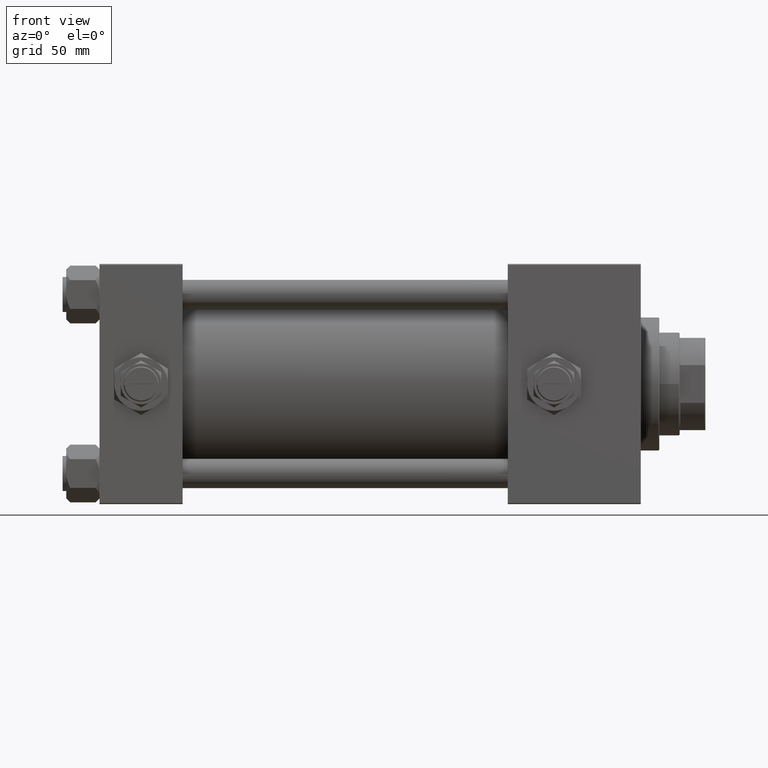
[diagram: clean part render]
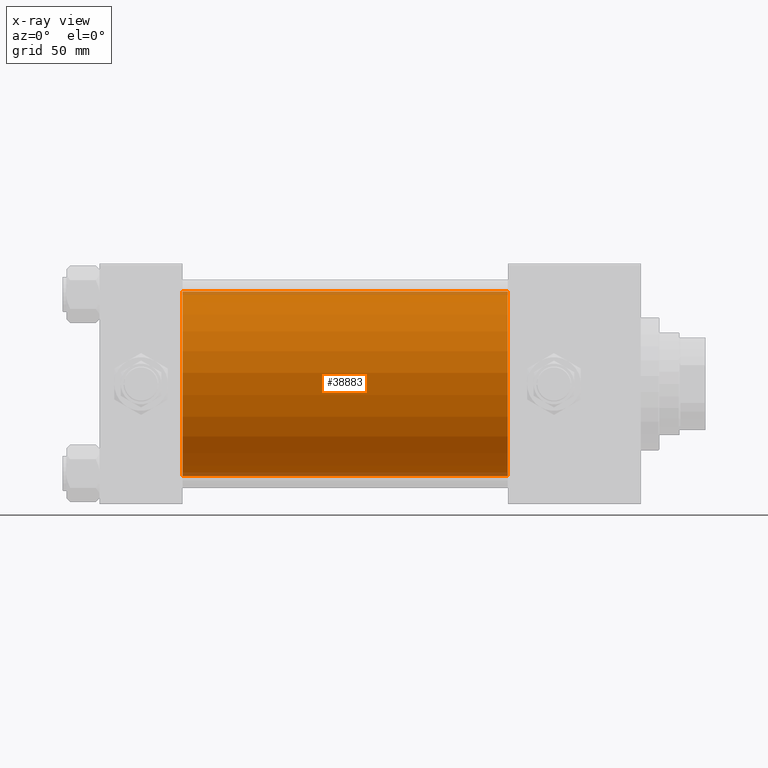
[diagram: x-ray — body ghosted, one internal face saturated and labeled with its STEP entity id]
A machine part, front view, then the same camera in x-ray: the body is ghosted and one INTERNAL B-rep face — a face not visible from any outside direction — is saturated and labeled: STEP entity #38883.
In plain terms, the highlighted cylindrical surface (partial cylindrical patch) has radius 50 mm, axis along (-1, -0, -0).
Its self-contained STEP definition (entity closure, byte-faithful):
#1646 = VERTEX_POINT ( 'NONE', #49063 ) ;
#2498 = VERTEX_POINT ( 'NONE', #15303 ) ;
#4176 = CIRCLE ( 'NONE', #32351, 50.00000000000000000 ) ;
#7784 = ORIENTED_EDGE ( 'NONE', *, *, #42433, .F. ) ;
#8041 = VECTOR ( 'NONE', #27804, 1000.000000000000000 ) ;
#11039 = CYLINDRICAL_SURFACE ( 'NONE', #29648, 50.00000000000000000 ) ;
#12284 = DIRECTION ( 'NONE',  ( 1.000000000000000000, 0.000000000000000000, 0.000000000000000000 ) ) ;
#12733 = DIRECTION ( 'NONE',  ( 0.000000000000000000, 0.000000000000000000, -1.000000000000000000 ) ) ;
#13019 = CARTESIAN_POINT ( 'NONE',  ( 45.00000000000000000, -2.602085213965210642E-15, 50.00000000000000000 ) ) ;
#14953 = VECTOR ( 'NONE', #23744, 1000.000000000000000 ) ;
#15303 = CARTESIAN_POINT ( 'NONE',  ( 220.9999999999999716, -2.602085213965210642E-15, 50.00000000000000000 ) ) ;
#15717 = CARTESIAN_POINT ( 'NONE',  ( 220.9999999999999716, -2.602085213965210642E-15, 50.00000000000000000 ) ) ;
#17959 = CARTESIAN_POINT ( 'NONE',  ( 45.00000000000000000, 3.521148781771555838E-15, -50.00000000000000000 ) ) ;
#19251 = DIRECTION ( 'NONE',  ( 0.000000000000000000, 0.000000000000000000, -1.000000000000000000 ) ) ;
#19506 = EDGE_CURVE ( 'NONE', #2498, #1646, #45100, .T. ) ;
#20313 = LINE ( 'NONE', #32341, #8041 ) ;
#21411 = EDGE_LOOP ( 'NONE', ( #33016, #33141, #7784, #27326 ) ) ;
#23744 = DIRECTION ( 'NONE',  ( -1.000000000000000000, -0.000000000000000000, -0.000000000000000000 ) ) ;
#27192 = VERTEX_POINT ( 'NONE', #13019 ) ;
#27326 = ORIENTED_EDGE ( 'NONE', *, *, #34101, .F. ) ;
#27804 = DIRECTION ( 'NONE',  ( -1.000000000000000000, -0.000000000000000000, -0.000000000000000000 ) ) ;
#29648 = AXIS2_PLACEMENT_3D ( 'NONE', #32424, #47961, #48752 ) ;
#32341 = CARTESIAN_POINT ( 'NONE',  ( 220.9999999999999716, 3.521148781771555838E-15, -50.00000000000000000 ) ) ;
#32351 = AXIS2_PLACEMENT_3D ( 'NONE', #33051, #49381, #12733 ) ;
#32424 = CARTESIAN_POINT ( 'NONE',  ( 220.9999999999999716, -2.602085213965210642E-15, 0.000000000000000000 ) ) ;
#33016 = ORIENTED_EDGE ( 'NONE', *, *, #19506, .T. ) ;
#33051 = CARTESIAN_POINT ( 'NONE',  ( 45.00000000000000000, -2.602085213965210642E-15, 0.000000000000000000 ) ) ;
#33141 = ORIENTED_EDGE ( 'NONE', *, *, #51671, .T. ) ;
#34101 = EDGE_CURVE ( 'NONE', #2498, #27192, #36034, .T. ) ;
#35558 = CARTESIAN_POINT ( 'NONE',  ( 220.9999999999999716, -2.602085213965210642E-15, 0.000000000000000000 ) ) ;
#36034 = LINE ( 'NONE', #15717, #14953 ) ;
#38883 = ADVANCED_FACE ( 'NONE', ( #47697 ), #11039, .F. ) ;
#39837 = VERTEX_POINT ( 'NONE', #17959 ) ;
#42433 = EDGE_CURVE ( 'NONE', #27192, #39837, #4176, .T. ) ;
#45100 = CIRCLE ( 'NONE', #51924, 50.00000000000000000 ) ;
#47697 = FACE_OUTER_BOUND ( 'NONE', #21411, .T. ) ;
#47961 = DIRECTION ( 'NONE',  ( -1.000000000000000000, -0.000000000000000000, -0.000000000000000000 ) ) ;
#48752 = DIRECTION ( 'NONE',  ( 0.000000000000000000, 0.000000000000000000, 1.000000000000000000 ) ) ;
#49063 = CARTESIAN_POINT ( 'NONE',  ( 220.9999999999999716, 3.521148781771555838E-15, -50.00000000000000000 ) ) ;
#49381 = DIRECTION ( 'NONE',  ( 1.000000000000000000, 0.000000000000000000, 0.000000000000000000 ) ) ;
#51671 = EDGE_CURVE ( 'NONE', #1646, #39837, #20313, .T. ) ;
#51924 = AXIS2_PLACEMENT_3D ( 'NONE', #35558, #12284, #19251 ) ;